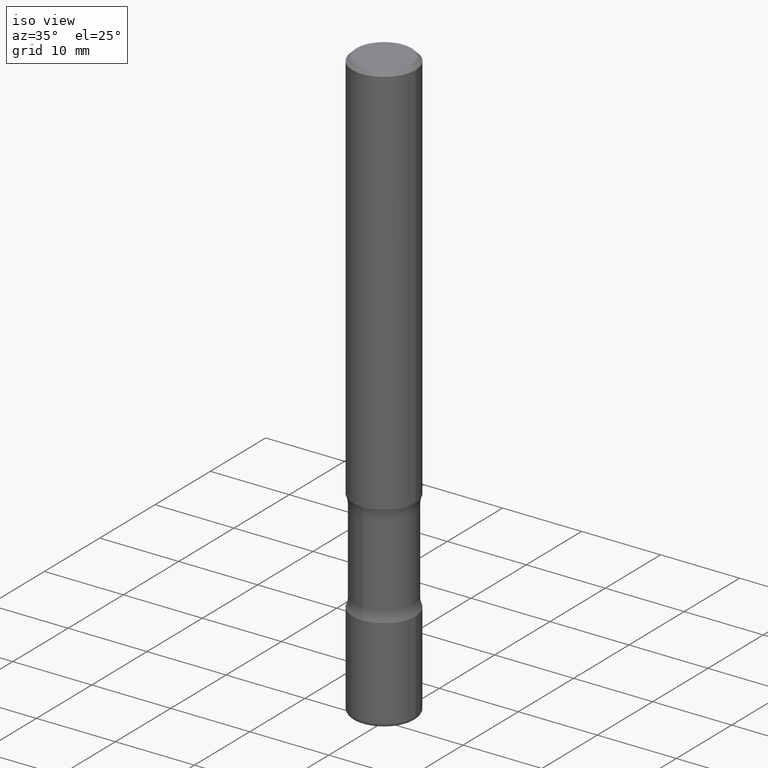
[diagram: clean part render]
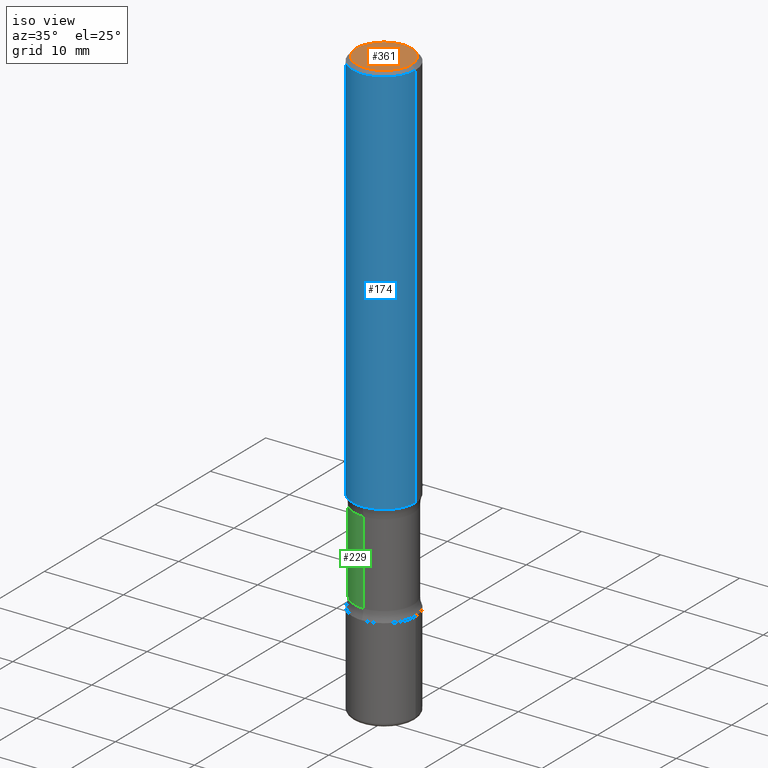
[diagram: same view with three faces highlighted in distinct colors, each labeled with its STEP entity id]
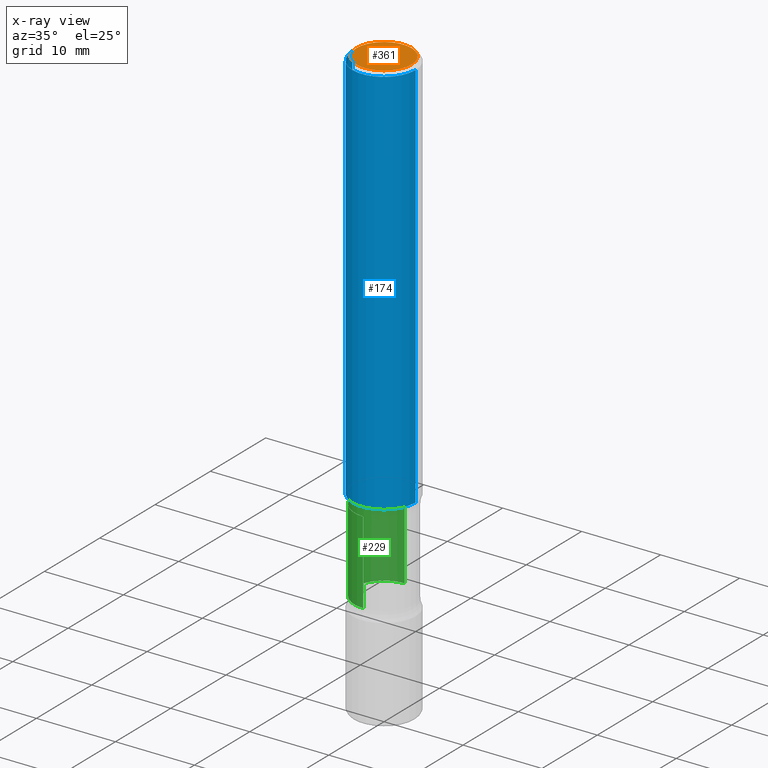
[diagram: x-ray of the same camera — body ghosted, the three highlighted faces saturated]
A machine part, iso view with three faces highlighted in distinct colors.
The next image is the same camera in x-ray (body ghosted, the three faces saturated) — at least one of them is partly hidden behind the body in this view.
Their STEP definitions:

[orange] entity #361 — the highlighted planar face has unit normal (0, -0, -1).
#9 = DIRECTION ( 'NONE',  ( -2.445468806185136597E-29, 3.491481338843145583E-15, 1.000000000000000000 ) ) ;
#42 = VERTEX_POINT ( 'NONE', #112 ) ;
#98 = CARTESIAN_POINT ( 'NONE',  ( 9.601573681818610811E-16, 0.1374999999999999278, -4.779444278458821021E-16 ) ) ;
#100 = CARTESIAN_POINT ( 'NONE',  ( 0.1374999999999999278, -1.046838268059731900E-15, 4.268512490107428597E-18 ) ) ;
#112 = CARTESIAN_POINT ( 'NONE',  ( -0.1374999999999999278, 9.950721815702923357E-16, 4.268512490093574228E-18 ) ) ;
#175 = DIRECTION ( 'NONE',  ( -2.445468806185136597E-29, 3.491481338843145583E-15, 1.000000000000000000 ) ) ;
#209 = AXIS2_PLACEMENT_3D ( 'NONE', #351, #175, #532 ) ;
#215 = DIRECTION ( 'NONE',  ( -1.000000000000000000, 6.982962677686265922E-15, -4.876176775795935793E-29 ) ) ;
#222 = EDGE_LOOP ( 'NONE', ( #333, #243 ) ) ;
#243 = ORIENTED_EDGE ( 'NONE', *, *, #377, .T. ) ;
#257 = PLANE ( 'NONE',  #488 ) ;
#269 = DIRECTION ( 'NONE',  ( 2.438088387897960049E-29, -3.491481338843145188E-15, -1.000000000000000000 ) ) ;
#333 = ORIENTED_EDGE ( 'NONE', *, *, #343, .T. ) ;
#343 = EDGE_CURVE ( 'NONE', #42, #390, #460, .T. ) ;
#351 = CARTESIAN_POINT ( 'NONE',  ( -1.043851414335219820E-46, 1.490343170380447200E-32, 4.268512490100411279E-18 ) ) ;
#361 = ADVANCED_FACE ( 'NONE', ( #530 ), #257, .F. ) ;
#377 = EDGE_CURVE ( 'NONE', #390, #42, #387, .T. ) ;
#387 = CIRCLE ( 'NONE', #209, 0.1374999999999999278 ) ;
#390 = VERTEX_POINT ( 'NONE', #100 ) ;
#403 = DIRECTION ( 'NONE',  ( 1.000000000000000000, -6.982962677686265922E-15, 4.876173381029102845E-29 ) ) ;
#413 = AXIS2_PLACEMENT_3D ( 'NONE', #481, #9, #403 ) ;
#460 = CIRCLE ( 'NONE', #413, 0.1374999999999999278 ) ;
#481 = CARTESIAN_POINT ( 'NONE',  ( -1.043851414335219820E-46, 1.490343170380447200E-32, 4.268512490100411279E-18 ) ) ;
#488 = AXIS2_PLACEMENT_3D ( 'NONE', #98, #269, #215 ) ;
#530 = FACE_OUTER_BOUND ( 'NONE', #222, .T. ) ;
#532 = DIRECTION ( 'NONE',  ( 1.000000000000000000, -6.982962677686265922E-15, 4.876173381029102845E-29 ) ) ;

[blue] entity #174 — the highlighted cylindrical surface (partial cylindrical patch) has radius 4.0005 mm, axis along (-0, 0, 1).
#22 = AXIS2_PLACEMENT_3D ( 'NONE', #517, #120, #287 ) ;
#24 = CARTESIAN_POINT ( 'NONE',  ( 4.813905344975440714E-29, -6.872981015512730918E-15, -1.968499999999999694 ) ) ;
#26 = VERTEX_POINT ( 'NONE', #452 ) ;
#54 = CARTESIAN_POINT ( 'NONE',  ( 0.1575000000000000289, -1.099816621735587283E-15, 7.679978421878599434E-30 ) ) ;
#57 = AXIS2_PLACEMENT_3D ( 'NONE', #314, #324, #326 ) ;
#86 = LINE ( 'NONE', #559, #320 ) ;
#94 = DIRECTION ( 'NONE',  ( -2.445468806185136877E-29, 3.491481338843145188E-15, 1.000000000000000000 ) ) ;
#107 = EDGE_CURVE ( 'NONE', #173, #496, #364, .T. ) ;
#108 = CARTESIAN_POINT ( 'NONE',  ( 0.1575000000000001676, -7.972797637248319976E-15, -1.968499999999999694 ) ) ;
#120 = DIRECTION ( 'NONE',  ( -2.445468806185136597E-29, 3.491481338843145583E-15, 1.000000000000000000 ) ) ;
#125 = AXIS2_PLACEMENT_3D ( 'NONE', #24, #541, #147 ) ;
#146 = EDGE_CURVE ( 'NONE', #173, #557, #86, .T. ) ;
#147 = DIRECTION ( 'NONE',  ( 1.000000000000000000, -6.982962677686267499E-15, 0.000000000000000000 ) ) ;
#151 = CIRCLE ( 'NONE', #57, 0.1574999999999999178 ) ;
#156 = ORIENTED_EDGE ( 'NONE', *, *, #146, .F. ) ;
#173 = VERTEX_POINT ( 'NONE', #289 ) ;
#174 = ADVANCED_FACE ( 'NONE', ( #511 ), #430, .T. ) ;
#177 = ORIENTED_EDGE ( 'NONE', *, *, #107, .T. ) ;
#258 = EDGE_LOOP ( 'NONE', ( #156, #177, #535, #270 ) ) ;
#270 = ORIENTED_EDGE ( 'NONE', *, *, #424, .F. ) ;
#275 = VECTOR ( 'NONE', #94, 39.37007874015748143 ) ;
#287 = DIRECTION ( 'NONE',  ( 1.000000000000000000, -6.982962677686267499E-15, 4.876176775795935232E-29 ) ) ;
#289 = CARTESIAN_POINT ( 'NONE',  ( -0.1575000000000001676, -2.352300512322635166E-15, -1.968499999999999694 ) ) ;
#290 = EDGE_CURVE ( 'NONE', #496, #26, #491, .T. ) ;
#314 = CARTESIAN_POINT ( 'NONE',  ( 4.890937612370273159E-31, -6.982962677686291609E-17, -0.02000000000000000042 ) ) ;
#320 = VECTOR ( 'NONE', #329, 39.37007874015748143 ) ;
#324 = DIRECTION ( 'NONE',  ( -2.445468806185136597E-29, 3.491481338843145583E-15, 1.000000000000000000 ) ) ;
#326 = DIRECTION ( 'NONE',  ( 1.000000000000000000, -6.982962677686266711E-15, 0.000000000000000000 ) ) ;
#329 = DIRECTION ( 'NONE',  ( -2.445468806185136877E-29, 3.491481338843145188E-15, 1.000000000000000000 ) ) ;
#364 = CIRCLE ( 'NONE', #125, 0.1575000000000001676 ) ;
#424 = EDGE_CURVE ( 'NONE', #557, #26, #151, .T. ) ;
#430 = CYLINDRICAL_SURFACE ( 'NONE', #22, 0.1575000000000000289 ) ;
#452 = CARTESIAN_POINT ( 'NONE',  ( 0.1574999999999999178, -1.150358061425878486E-15, -0.02000000000000000042 ) ) ;
#491 = LINE ( 'NONE', #54, #275 ) ;
#493 = CARTESIAN_POINT ( 'NONE',  ( -0.1574999999999999178, 1.029986994958723590E-15, -0.02000000000000000042 ) ) ;
#496 = VERTEX_POINT ( 'NONE', #108 ) ;
#511 = FACE_OUTER_BOUND ( 'NONE', #258, .T. ) ;
#517 = CARTESIAN_POINT ( 'NONE',  ( 0.000000000000000000, 0.000000000000000000, 0.000000000000000000 ) ) ;
#535 = ORIENTED_EDGE ( 'NONE', *, *, #290, .T. ) ;
#541 = DIRECTION ( 'NONE',  ( -2.445468806185136597E-29, 3.491481338843145583E-15, 1.000000000000000000 ) ) ;
#557 = VERTEX_POINT ( 'NONE', #493 ) ;
#559 = CARTESIAN_POINT ( 'NONE',  ( -0.1575000000000000289, 1.119104808822157998E-15, -7.747322767151478386E-30 ) ) ;

[green] entity #229 — the highlighted cylindrical surface (edge-blend (fillet) strip) has radius 3.7427 mm, axis along (0, -0, -1).
#2 = DIRECTION ( 'NONE',  ( 6.982962677686265133E-15, 1.000000000000000000, -3.707971487837479733E-15 ) ) ;
#30 = DIRECTION ( 'NONE',  ( 2.474888810202925163E-29, -3.449350218607033250E-15, -1.000000000000000000 ) ) ;
#35 = EDGE_CURVE ( 'NONE', #199, #47, #281, .T. ) ;
#41 = CYLINDRICAL_SURFACE ( 'NONE', #396, 0.1473500000000000087 ) ;
#45 = DIRECTION ( 'NONE',  ( 2.474888810202925163E-29, -3.449350218607033250E-15, -1.000000000000000000 ) ) ;
#47 = VERTEX_POINT ( 'NONE', #461 ) ;
#73 = CIRCLE ( 'NONE', #375, 0.1473499999999999810 ) ;
#96 = EDGE_CURVE ( 'NONE', #439, #199, #73, .T. ) ;
#104 = ORIENTED_EDGE ( 'NONE', *, *, #96, .T. ) ;
#132 = EDGE_CURVE ( 'NONE', #439, #263, #253, .T. ) ;
#160 = FACE_OUTER_BOUND ( 'NONE', #531, .T. ) ;
#163 = CARTESIAN_POINT ( 'NONE',  ( 7.234878300801473340E-29, -1.028974335613649852E-14, -2.952799999999999869 ) ) ;
#186 = ORIENTED_EDGE ( 'NONE', *, *, #247, .F. ) ;
#188 = CARTESIAN_POINT ( 'NONE',  ( -1.045711407310277305E-15, -0.1473500000000070587, -2.017840424602955984 ) ) ;
#195 = DIRECTION ( 'NONE',  ( 6.982962677686265133E-15, 1.000000000000000000, -3.707971487837480522E-15 ) ) ;
#199 = VERTEX_POINT ( 'NONE', #473 ) ;
#229 = ADVANCED_FACE ( 'NONE', ( #160 ), #41, .T. ) ;
#247 = EDGE_CURVE ( 'NONE', #263, #47, #449, .T. ) ;
#253 = LINE ( 'NONE', #340, #338 ) ;
#263 = VERTEX_POINT ( 'NONE', #468 ) ;
#281 = LINE ( 'NONE', #494, #330 ) ;
#313 = ORIENTED_EDGE ( 'NONE', *, *, #132, .F. ) ;
#330 = VECTOR ( 'NONE', #508, 39.37007874015748143 ) ;
#332 = DIRECTION ( 'NONE',  ( 2.474888810202925163E-29, -3.449350218607033250E-15, -1.000000000000000000 ) ) ;
#334 = DIRECTION ( 'NONE',  ( 6.982962677686266711E-15, 1.000000000000000000, -3.707971487837479733E-15 ) ) ;
#338 = VECTOR ( 'NONE', #379, 39.37007874015748143 ) ;
#340 = CARTESIAN_POINT ( 'NONE',  ( -1.010894379971562693E-15, -0.1473500000000103061, -2.952799999999998981 ) ) ;
#354 = ORIENTED_EDGE ( 'NONE', *, *, #35, .T. ) ;
#370 = CARTESIAN_POINT ( 'NONE',  ( 4.920957309659253149E-29, -7.064740340351969652E-15, -2.017840424602956428 ) ) ;
#375 = AXIS2_PLACEMENT_3D ( 'NONE', #370, #30, #195 ) ;
#379 = DIRECTION ( 'NONE',  ( 2.474888810202925163E-29, -3.449350218607032856E-15, -1.000000000000000000 ) ) ;
#396 = AXIS2_PLACEMENT_3D ( 'NONE', #163, #332, #2 ) ;
#428 = CARTESIAN_POINT ( 'NONE',  ( 5.943628762121094077E-29, -8.490077908476165751E-15, -2.431059575397043204 ) ) ;
#439 = VERTEX_POINT ( 'NONE', #188 ) ;
#449 = CIRCLE ( 'NONE', #528, 0.1473500000000000087 ) ;
#461 = CARTESIAN_POINT ( 'NONE',  ( 1.028939550557130839E-15, 0.1473499999999915433, -2.431059575397043648 ) ) ;
#468 = CARTESIAN_POINT ( 'NONE',  ( -1.045711407310266063E-15, -0.1473500000000085020, -2.431059575397042760 ) ) ;
#473 = CARTESIAN_POINT ( 'NONE',  ( 1.028939550557120386E-15, 0.1473499999999929033, -2.017840424602956872 ) ) ;
#494 = CARTESIAN_POINT ( 'NONE',  ( 1.028939550557143658E-15, 0.1473499999999897114, -2.952800000000000313 ) ) ;
#508 = DIRECTION ( 'NONE',  ( 2.474888810202925163E-29, -3.449350218607032856E-15, -1.000000000000000000 ) ) ;
#528 = AXIS2_PLACEMENT_3D ( 'NONE', #428, #45, #334 ) ;
#531 = EDGE_LOOP ( 'NONE', ( #313, #104, #354, #186 ) ) ;